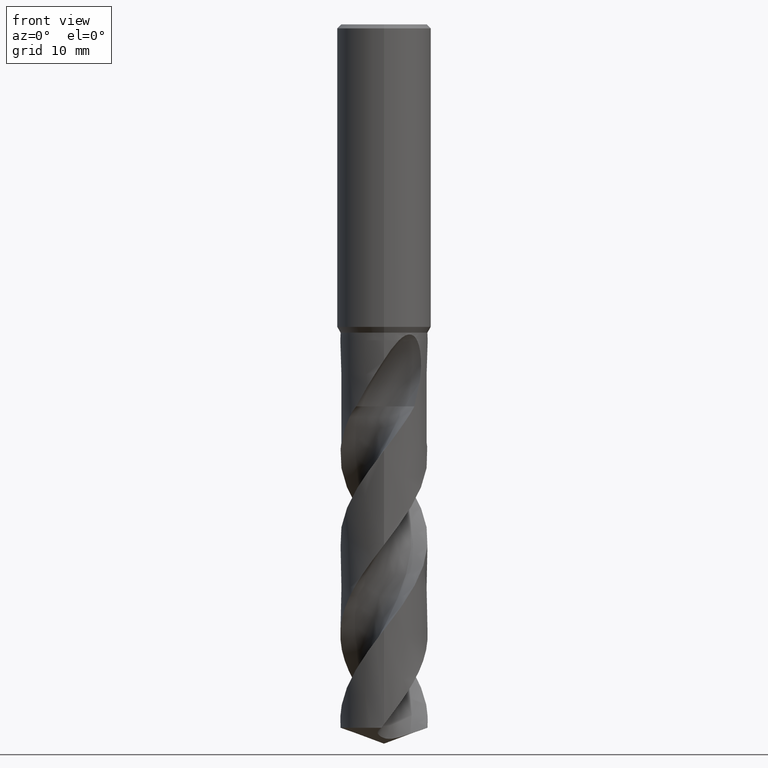
[diagram: clean part render]
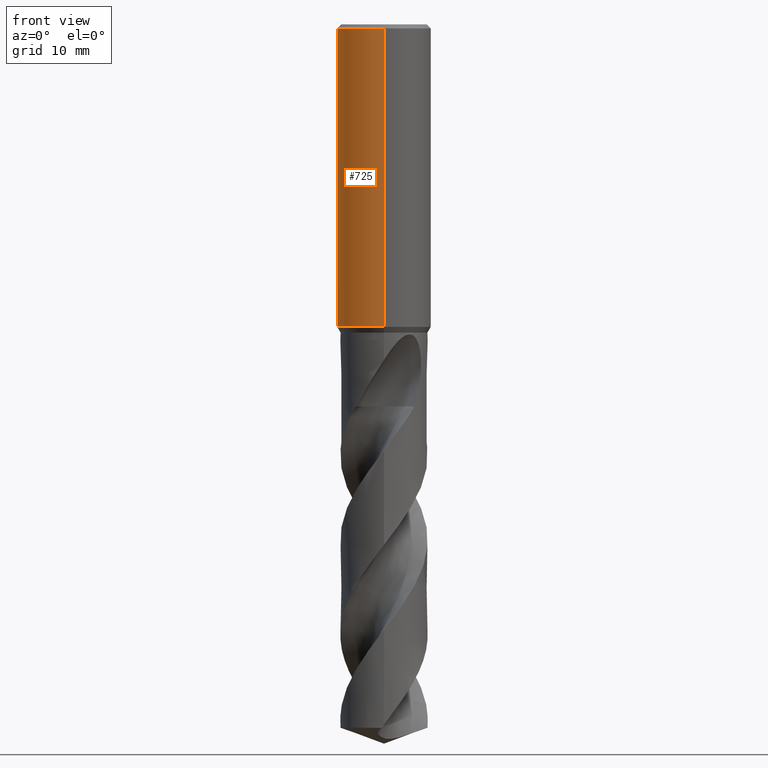
[diagram: same view with one face highlighted and labeled with its STEP entity id]
A machine part, front view. The second image highlights one B-rep face of the part: STEP entity #725.
In plain terms, the highlighted cylindrical surface (partial cylindrical patch) has radius 7 mm, axis along (-0, -0, 1).
Its self-contained STEP definition (entity closure, byte-faithful):
#271=EDGE_CURVE('',#535,#483,#762,.T.);
#275=VERTEX_POINT('',#766);
#289=VERTEX_POINT('',#781);
#293=EDGE_CURVE('',#625,#289,#786,.T.);
#401=EDGE_CURVE('',#415,#627,#905,.T.);
#403=EDGE_CURVE('',#443,#669,#907,.T.);
#407=EDGE_CURVE('',#487,#275,#911,.T.);
#415=VERTEX_POINT('',#919);
#423=VERTEX_POINT('',#927);
#437=VERTEX_POINT('',#941);
#443=VERTEX_POINT('',#948);
#445=EDGE_CURVE('',#437,#415,#950,.T.);
#451=EDGE_CURVE('',#437,#669,#956,.T.);
#483=VERTEX_POINT('',#992);
#487=VERTEX_POINT('',#996);
#495=EDGE_CURVE('',#423,#625,#1004,.T.);
#509=EDGE_CURVE('',#275,#535,#1020,.T.);
#535=VERTEX_POINT('',#1048);
#625=VERTEX_POINT('',#1147);
#627=VERTEX_POINT('',#1149);
#631=EDGE_CURVE('',#627,#487,#1153,.T.);
#669=VERTEX_POINT('',#1196);
#689=EDGE_CURVE('',#289,#443,#1217,.T.);
#713=EDGE_CURVE('',#483,#423,#1245,.T.);
#725=ADVANCED_FACE('',(#1258),#1259,.T.);
#762=CIRCLE('',#1290,7.0);
#766=CARTESIAN_POINT('',(-0.486378944383046,6.98308209334967,-40.6432837483006));
#781=CARTESIAN_POINT('',(-1.337052752443,6.87111999147043,-42.3720803908795));
#786=ELLIPSE('',#1362,7.80449902430002,7.0);
#905=CIRCLE('',#1994,7.0);
#907=LINE('',#1997,#1998);
#911=B_SPLINE_CURVE_WITH_KNOTS('',3,(#2013,#2014,#2015,#2016,#2017,#2018,#2019,#2020,#2021,#2022,#2023,#2024,#2025,#2026,#2027,#2028,#2029,#2030,#2031,#2032,#2033,#2034,#2035,#2036,#2037,#2038,#2039),.UNSPECIFIED.,.F.,.F.,(4,2,3,2,2,2,2,2,2,2,2,2,4),(-0.542036445993936,-0.271018222996967,0.0,0.271018222996968,0.542036445993935,0.813346115303562,1.08465578461319,1.35548019069071,1.62630459676823,1.89727226982465,2.16823994288107,2.4392076159375,2.71017528899392),.UNSPECIFIED.);
#919=CARTESIAN_POINT('',(8.57224447675664E-016,-7.0,-0.600000000000001));
#927=CARTESIAN_POINT('',(1.56163949104066E-015,7.0,-41.5000801551881));
#941=CARTESIAN_POINT('',(8.57224447675664E-016,-7.0,-45.0));
#948=CARTESIAN_POINT('',(9.85631653213508E-016,7.0,-43.0310253601033));
#950=LINE('',#2431,#2432);
#956=CIRCLE('',#2453,7.0);
#992=CARTESIAN_POINT('',(-1.0350734039088,6.92305012610198,-40.3171221986971));
#996=CARTESIAN_POINT('',(-2.74802050569022E-015,7.0,-41.0232688117743));
#1004=LINE('',#3359,#3360);
#1020=B_SPLINE_CURVE_WITH_KNOTS('',3,(#3469,#3470,#3471,#3472,#3473,#3474,#3475,#3476,#3477,#3478,#3479,#3480,#3481,#3482,#3483,#3484,#3485,#3486,#3487,#3488,#3489,#3490,#3491,#3492,#3493,#3494,#3495),.UNSPECIFIED.,.F.,.F.,(4,2,3,2,2,2,2,2,2,2,2,2,4),(-0.542036445993936,-0.271018222996967,0.0,0.271018222996968,0.542036445993935,0.813346115303562,1.08465578461319,1.35548019069071,1.62630459676823,1.89727226982465,2.16823994288107,2.4392076159375,2.71017528899392),.UNSPECIFIED.);
#1048=CARTESIAN_POINT('',(-0.562333990228013,6.97737633236407,-40.3171221986971));
#1147=CARTESIAN_POINT('',(-8.57210826244543E-016,7.0,-41.7128911336578));
#1149=CARTESIAN_POINT('',(0.0,7.0,-0.600000000000001));
#1153=LINE('',#4228,#4229);
#1196=CARTESIAN_POINT('',(0.0,7.0,-45.0));
#1217=B_SPLINE_CURVE_WITH_KNOTS('',3,(#4418,#4419,#4420,#4421,#4422,#4423,#4424,#4425,#4426,#4427,#4428,#4429,#4430,#4431,#4432,#4433),.UNSPECIFIED.,.F.,.F.,(4,2,2,2,2,2,2,4),(5.85148113241198,6.15947819753677,6.46754648496164,6.77561477238651,7.08368305981137,7.39175134723624,7.69959009287517,8.00742883851411),.UNSPECIFIED.);
#1245=B_SPLINE_CURVE_WITH_KNOTS('',3,(#5085,#5086,#5087,#5088,#5089,#5090,#5091,#5092,#5093,#5094,#5095,#5096,#5097,#5098),.UNSPECIFIED.,.F.,.F.,(4,2,2,2,2,2,4),(3.12645802078654,3.57295808501897,4.01945814925139,4.46595821348382,4.91200155349149,5.35804489349917,5.80533959969527),.UNSPECIFIED.);
#1258=FACE_OUTER_BOUND('',#5137,.T.);
#1259=CYLINDRICAL_SURFACE('',#5138,7.0);
#1290=AXIS2_PLACEMENT_3D('',#5203,#5204,#5205);
#1362=AXIS2_PLACEMENT_3D('',#5228,#5229,#5230);
#1994=AXIS2_PLACEMENT_3D('',#5369,#5370,#5371);
#1997=CARTESIAN_POINT('',(-8.57224447675664E-016,7.0,-22.8));
#1998=VECTOR('',#5372,1.0);
#2013=CARTESIAN_POINT('',(0.664987495682015,6.96834210057074,-39.8134609607519));
#2014=CARTESIAN_POINT('',(0.728704683046946,6.96226158209931,-39.8772132619402));
#2015=CARTESIAN_POINT('',(0.783980930146228,6.9560576278509,-39.9579629630826));
#2016=CARTESIAN_POINT('',(0.857331586478981,6.94739853321816,-40.1350040779371));
#2017=CARTESIAN_POINT('',(0.875400981188567,6.94504666090402,-40.2313026049211));
#2018=CARTESIAN_POINT('',(0.875400981188567,6.94504666090402,-40.3216420125868));
#2019=CARTESIAN_POINT('',(0.875400981188567,6.94504666090402,-40.4119814202524));
#2020=CARTESIAN_POINT('',(0.857331586478977,6.94739853321816,-40.5082799472365));
#2021=CARTESIAN_POINT('',(0.783980930146221,6.9560576278509,-40.685321062091));
#2022=CARTESIAN_POINT('',(0.728704683046946,6.96226158209931,-40.7660707632334));
#2023=CARTESIAN_POINT('',(0.601201788425301,6.97442915788175,-40.8936439232623));
#2024=CARTESIAN_POINT('',(0.520416779900602,6.98119186147897,-40.9489826210903));
#2025=CARTESIAN_POINT('',(0.343290106212511,6.99214025419339,-41.0224214149619));
#2026=CARTESIAN_POINT('',(0.246940334999491,6.99622750070997,-41.0405166027747));
#2027=CARTESIAN_POINT('',(0.06627416096803,7.00026837167467,-41.0405166027747));
#2028=CARTESIAN_POINT('',(-0.0300009021098098,7.00049584323788,-41.0224792632517));
#2029=CARTESIAN_POINT('',(-0.207086828462645,6.99749649166544,-40.9491375975081));
#2030=CARTESIAN_POINT('',(-0.287900132119289,6.99436879728022,-40.8938351432694));
#2031=CARTESIAN_POINT('',(-0.415543530410312,6.98794742768012,-40.7662368077791));
#2032=CARTESIAN_POINT('',(-0.470882886829905,6.98424107836303,-40.6854131216791));
#2033=CARTESIAN_POINT('',(-0.544286323056282,6.97890439374672,-40.5082789756897));
#2034=CARTESIAN_POINT('',(-0.562348199187247,6.97737518719403,-40.4119645702723));
#2035=CARTESIAN_POINT('',(-0.562348199187247,6.97737518719403,-40.2313194549013));
#2036=CARTESIAN_POINT('',(-0.544286323056282,6.97890439374672,-40.1350050494839));
#2037=CARTESIAN_POINT('',(-0.470882886829905,6.98424107836303,-39.9578709034945));
#2038=CARTESIAN_POINT('',(-0.415543530410313,6.98794742768012,-39.8770472173944));
#2039=CARTESIAN_POINT('',(-0.351704954786946,6.99115896148688,-39.8132311791295));
#2431=CARTESIAN_POINT('',(8.57224447675664E-016,-7.0,-22.8));
#2432=VECTOR('',#5381,1.0);
#2453=AXIS2_PLACEMENT_3D('',#5383,#5384,#5385);
#3359=CARTESIAN_POINT('',(-8.57224447675664E-016,7.0,-22.8));
#3360=VECTOR('',#5439,1.0);
#3469=CARTESIAN_POINT('',(0.664987495682015,6.96834210057074,-39.8134609607519));
#3470=CARTESIAN_POINT('',(0.728704683046946,6.96226158209931,-39.8772132619402));
#3471=CARTESIAN_POINT('',(0.783980930146228,6.9560576278509,-39.9579629630826));
#3472=CARTESIAN_POINT('',(0.857331586478981,6.94739853321816,-40.1350040779371));
#3473=CARTESIAN_POINT('',(0.875400981188567,6.94504666090402,-40.2313026049211));
#3474=CARTESIAN_POINT('',(0.875400981188567,6.94504666090402,-40.3216420125868));
#3475=CARTESIAN_POINT('',(0.875400981188567,6.94504666090402,-40.4119814202524));
#3476=CARTESIAN_POINT('',(0.857331586478977,6.94739853321816,-40.5082799472365));
#3477=CARTESIAN_POINT('',(0.783980930146221,6.9560576278509,-40.685321062091));
#3478=CARTESIAN_POINT('',(0.728704683046946,6.96226158209931,-40.7660707632334));
#3479=CARTESIAN_POINT('',(0.601201788425301,6.97442915788175,-40.8936439232623));
#3480=CARTESIAN_POINT('',(0.520416779900602,6.98119186147897,-40.9489826210903));
#3481=CARTESIAN_POINT('',(0.343290106212511,6.99214025419339,-41.0224214149619));
#3482=CARTESIAN_POINT('',(0.246940334999491,6.99622750070997,-41.0405166027747));
#3483=CARTESIAN_POINT('',(0.06627416096803,7.00026837167467,-41.0405166027747));
#3484=CARTESIAN_POINT('',(-0.0300009021098098,7.00049584323788,-41.0224792632517));
#3485=CARTESIAN_POINT('',(-0.207086828462645,6.99749649166544,-40.9491375975081));
#3486=CARTESIAN_POINT('',(-0.287900132119289,6.99436879728022,-40.8938351432694));
#3487=CARTESIAN_POINT('',(-0.415543530410312,6.98794742768012,-40.7662368077791));
#3488=CARTESIAN_POINT('',(-0.470882886829905,6.98424107836303,-40.6854131216791));
#3489=CARTESIAN_POINT('',(-0.544286323056282,6.97890439374672,-40.5082789756897));
#3490=CARTESIAN_POINT('',(-0.562348199187247,6.97737518719403,-40.4119645702723));
#3491=CARTESIAN_POINT('',(-0.562348199187247,6.97737518719403,-40.2313194549013));
#3492=CARTESIAN_POINT('',(-0.544286323056282,6.97890439374672,-40.1350050494839));
#3493=CARTESIAN_POINT('',(-0.470882886829905,6.98424107836303,-39.9578709034945));
#3494=CARTESIAN_POINT('',(-0.415543530410313,6.98794742768012,-39.8770472173944));
#3495=CARTESIAN_POINT('',(-0.351704954786946,6.99115896148688,-39.8132311791295));
#4228=CARTESIAN_POINT('',(-8.57224447675664E-016,7.0,-22.8));
#4229=VECTOR('',#5599,1.0);
#4418=CARTESIAN_POINT('',(-1.37956950013868,6.862709959942,-42.3118860272267));
#4419=CARTESIAN_POINT('',(-1.31985944512012,6.87471311484171,-42.4006164760917));
#4420=CARTESIAN_POINT('',(-1.2521751980669,6.88748156909145,-42.4820605072323));
#4421=CARTESIAN_POINT('',(-1.10803116428717,6.91213530701744,-42.6262319850711));
#4422=CARTESIAN_POINT('',(-1.02657943157941,6.92489379632338,-42.6939460667801));
#4423=CARTESIAN_POINT('',(-0.849091702963374,6.94888931409906,-42.8134214863536));
#4424=CARTESIAN_POINT('',(-0.753058262458167,6.96010382408442,-42.8651911418259));
#4425=CARTESIAN_POINT('',(-0.552521113580874,6.97888690311178,-42.9484382818491));
#4426=CARTESIAN_POINT('',(-0.447850922696022,6.98645535289821,-42.9799817262365));
#4427=CARTESIAN_POINT('',(-0.237116900888673,6.99677814585499,-43.0214038898241));
#4428=CARTESIAN_POINT('',(-0.131050755579278,6.99952647100642,-43.0312723335086));
#4429=CARTESIAN_POINT('',(0.0742499035867442,7.00035830241466,-43.0312723335086));
#4430=CARTESIAN_POINT('',(0.180258797232803,6.99847263330913,-43.0214183295518));
#4431=CARTESIAN_POINT('',(0.390914314103444,6.98987113130027,-42.9800352841335));
#4432=CARTESIAN_POINT('',(0.495563147536711,6.98316134581655,-42.9485162373715));
#4433=CARTESIAN_POINT('',(0.595822105081569,6.97459647715165,-42.9069156645199));
#5085=CARTESIAN_POINT('',(-0.944870490172538,6.9359368333918,-39.8731204234947));
#5086=CARTESIAN_POINT('',(-1.00531163422684,6.92770304395635,-40.0188717617141));
#5087=CARTESIAN_POINT('',(-1.03510901790186,6.92304480131815,-40.1774685059886));
#5088=CARTESIAN_POINT('',(-1.03510901790186,6.92304480131815,-40.4751352154769));
#5089=CARTESIAN_POINT('',(-1.00531163422684,6.92770304395635,-40.6337319597515));
#5090=CARTESIAN_POINT('',(-0.88442934611823,6.94417062282726,-40.9252346361903));
#5091=CARTESIAN_POINT('',(-0.793356356552045,6.95569708995322,-41.0581614200253));
#5092=CARTESIAN_POINT('',(-0.583429192028742,6.97644063420352,-41.267959298194));
#5093=CARTESIAN_POINT('',(-0.450541813315198,6.98700760486651,-41.3589251547042));
#5094=CARTESIAN_POINT('',(-0.159180423516804,6.99970890737869,-41.4796356128542));
#5095=CARTESIAN_POINT('',(-0.000690145397732517,7.00157879318387,-41.5093686300866));
#5096=CARTESIAN_POINT('',(0.297022677176191,6.99528468420279,-41.5093686300866));
#5097=CARTESIAN_POINT('',(0.455705944073458,6.98668220277279,-41.4794861861744));
#5098=CARTESIAN_POINT('',(0.601439123955211,6.97411435095353,-41.4190056749212));
#5137=EDGE_LOOP('',(#5753,#5754,#5755,#5756,#5757,#5758,#5759,#5760,#5761,#5762,#5763,#5764));
#5138=AXIS2_PLACEMENT_3D('',#5765,#5766,#5767);
#5203=CARTESIAN_POINT('',(0.0,0.0,-40.3171221986971));
#5204=DIRECTION('',(0.0,-0.0,1.0));
#5205=DIRECTION('',(0.0,1.0,0.0));
#5228=CARTESIAN_POINT('',(0.0,0.0,-41.7128911336578));
#5229=DIRECTION('',(-0.442195774284071,0.0,0.896918556617774));
#5230=DIRECTION('',(0.896918556617774,-0.0,0.442195774284071));
#5369=CARTESIAN_POINT('',(0.0,0.0,-0.600000000000001));
#5370=DIRECTION('',(0.0,0.0,-1.0));
#5371=DIRECTION('',(0.0,1.0,0.0));
#5372=DIRECTION('',(0.0,0.0,-1.0));
#5381=DIRECTION('',(-0.0,-0.0,1.0));
#5383=CARTESIAN_POINT('',(0.0,0.0,-45.0));
#5384=DIRECTION('',(0.0,0.0,-1.0));
#5385=DIRECTION('',(0.0,1.0,0.0));
#5439=DIRECTION('',(0.0,0.0,-1.0));
#5599=DIRECTION('',(0.0,0.0,-1.0));
#5753=ORIENTED_EDGE('',*,*,#631,.T.);
#5754=ORIENTED_EDGE('',*,*,#407,.T.);
#5755=ORIENTED_EDGE('',*,*,#509,.T.);
#5756=ORIENTED_EDGE('',*,*,#271,.T.);
#5757=ORIENTED_EDGE('',*,*,#713,.T.);
#5758=ORIENTED_EDGE('',*,*,#495,.T.);
#5759=ORIENTED_EDGE('',*,*,#293,.T.);
#5760=ORIENTED_EDGE('',*,*,#689,.T.);
#5761=ORIENTED_EDGE('',*,*,#403,.T.);
#5762=ORIENTED_EDGE('',*,*,#451,.F.);
#5763=ORIENTED_EDGE('',*,*,#445,.T.);
#5764=ORIENTED_EDGE('',*,*,#401,.T.);
#5765=CARTESIAN_POINT('',(0.0,0.0,-22.8));
#5766=DIRECTION('',(-0.0,-0.0,1.0));
#5767=DIRECTION('',(0.0,1.0,0.0));